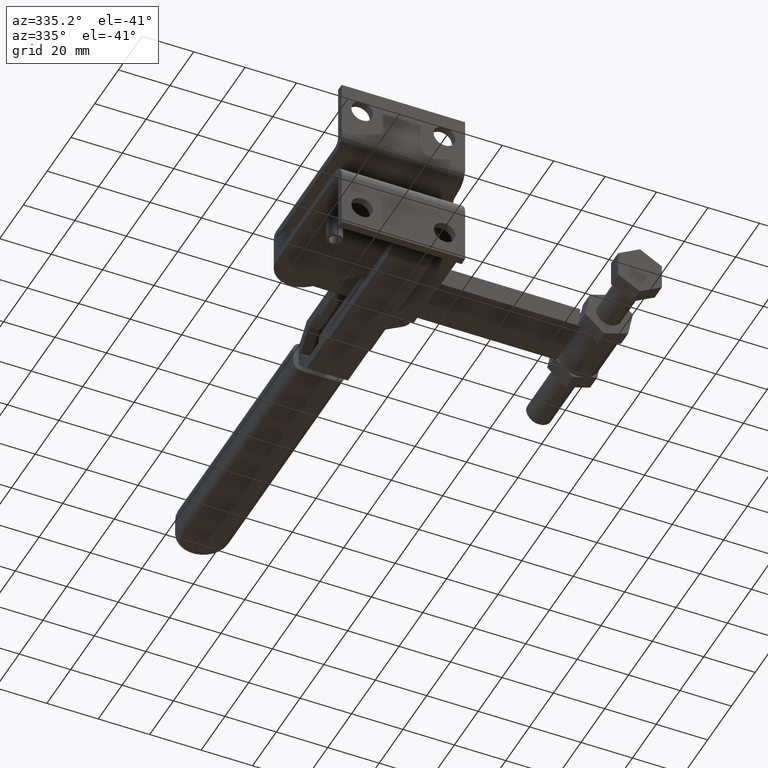
[diagram: clean part render]
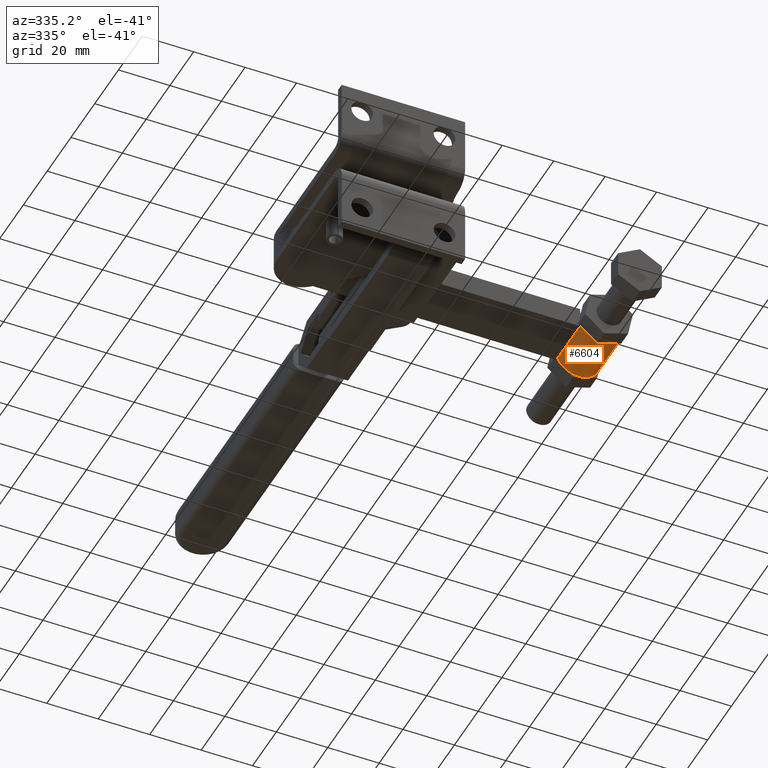
[diagram: same view with one face highlighted and labeled with its STEP entity id]
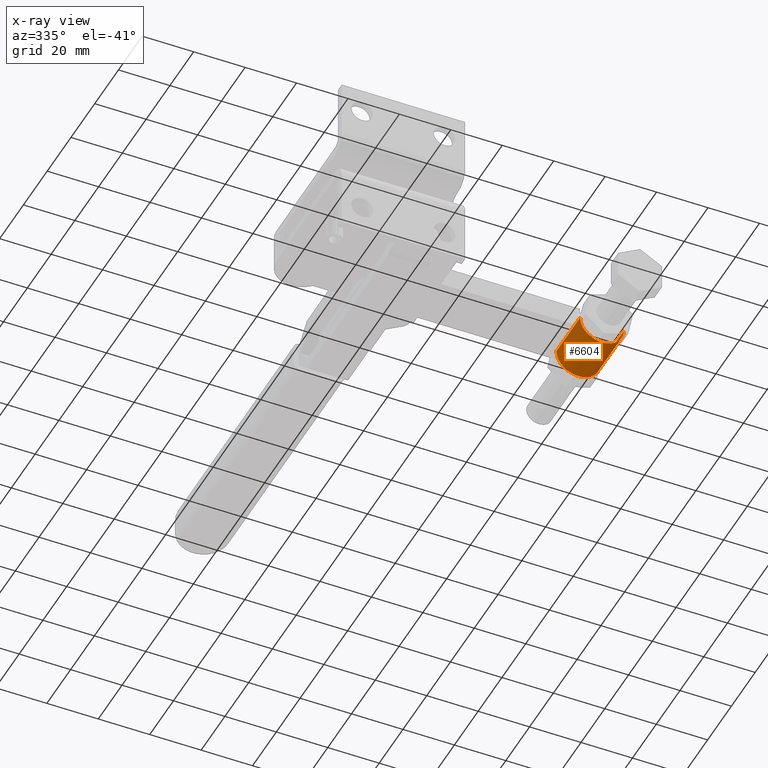
[diagram: x-ray of the same camera — body ghosted, the highlighted face saturated]
A machine part, auxiliary view. The second image highlights one B-rep face of the part: STEP entity #6604.
The next image is the same camera in x-ray: the body ghosted, the highlighted face saturated — about 0% of this face is hidden behind the body in this view.
In plain terms, the highlighted cylindrical surface (edge-blend (fillet) strip) has radius 8.5 mm, axis along (0, 1, 0).
Its self-contained STEP definition (entity closure, byte-faithful):
#6509=CARTESIAN_POINT('',(-890.357969662264960,110.092249585627530,-3.596141E-013));
#6510=DIRECTION('',(1.073216E-015,1.0,3.622758E-030));
#6511=DIRECTION('',(1.0,0.0,0.0));
#6512=AXIS2_PLACEMENT_3D('',#6509,#6510,#6511);
#6513=CYLINDRICAL_SURFACE('',#6512,8.500000000000000);
#6514=CARTESIAN_POINT('',(-881.857969662264960,110.092249585627510,-3.550672E-013));
#6515=VERTEX_POINT('',#6514);
#6516=CARTESIAN_POINT('',(-881.857969662264960,130.092249585627510,-3.550672E-013));
#6517=VERTEX_POINT('',#6516);
#6518=CARTESIAN_POINT('',(-881.857969662264960,110.092249585627510,-3.550672E-013));
#6519=DIRECTION('',(0.0,1.0,0.0));
#6520=VECTOR('',#6519,20.0);
#6521=LINE('',#6518,#6520);
#6522=EDGE_CURVE('',#6515,#6517,#6521,.T.);
#6523=ORIENTED_EDGE('',*,*,#6522,.F.);
#6524=CARTESIAN_POINT('',(-882.014227246437030,110.092249585627480,-1.622332425340619));
#6525=VERTEX_POINT('',#6524);
#6526=CARTESIAN_POINT('',(-890.357969662264960,110.092249585627530,-3.596141E-013));
#6527=DIRECTION('',(0.0,1.0,0.0));
#6528=DIRECTION('',(1.0,0.0,0.0));
#6529=AXIS2_PLACEMENT_3D('',#6526,#6527,#6528);
#6530=CIRCLE('',#6529,8.500000000000000);
#6531=EDGE_CURVE('',#6515,#6525,#6530,.T.);
#6532=ORIENTED_EDGE('',*,*,#6531,.T.);
#6533=CARTESIAN_POINT('',(-887.591079548078820,110.092249585627530,-8.037059107411452));
#6534=VERTEX_POINT('',#6533);
#6535=CARTESIAN_POINT('',(-890.357969662264960,110.092249585627530,-3.596141E-013));
#6536=DIRECTION('',(0.0,1.0,0.0));
#6537=DIRECTION('',(1.0,0.0,0.0));
#6538=AXIS2_PLACEMENT_3D('',#6535,#6536,#6537);
#6539=CIRCLE('',#6538,8.500000000000000);
#6540=EDGE_CURVE('',#6525,#6534,#6539,.T.);
#6541=ORIENTED_EDGE('',*,*,#6540,.T.);
#6542=CARTESIAN_POINT('',(-895.934821963907100,110.092249585627530,-6.414726682071126));
#6543=VERTEX_POINT('',#6542);
#6544=CARTESIAN_POINT('',(-890.357969662264960,110.092249585627530,-3.596141E-013));
#6545=DIRECTION('',(0.0,1.0,0.0));
#6546=DIRECTION('',(1.0,0.0,0.0));
#6547=AXIS2_PLACEMENT_3D('',#6544,#6545,#6546);
#6548=CIRCLE('',#6547,8.500000000000000);
#6549=EDGE_CURVE('',#6534,#6543,#6548,.T.);
#6550=ORIENTED_EDGE('',*,*,#6549,.T.);
#6551=CARTESIAN_POINT('',(-898.857969662265080,110.092249585627400,-3.631200E-013));
#6552=VERTEX_POINT('',#6551);
#6553=CARTESIAN_POINT('',(-890.357969662264960,110.092249585627530,-3.596141E-013));
#6554=DIRECTION('',(0.0,1.0,0.0));
#6555=DIRECTION('',(1.0,0.0,0.0));
#6556=AXIS2_PLACEMENT_3D('',#6553,#6554,#6555);
#6557=CIRCLE('',#6556,8.500000000000000);
#6558=EDGE_CURVE('',#6543,#6552,#6557,.T.);
#6559=ORIENTED_EDGE('',*,*,#6558,.T.);
#6560=CARTESIAN_POINT('',(-898.857969662265080,130.092249585627400,-3.631200E-013));
#6561=VERTEX_POINT('',#6560);
#6562=CARTESIAN_POINT('',(-898.857969662265080,110.092249585627400,-3.631200E-013));
#6563=DIRECTION('',(0.0,1.0,0.0));
#6564=VECTOR('',#6563,20.0);
#6565=LINE('',#6562,#6564);
#6566=EDGE_CURVE('',#6552,#6561,#6565,.T.);
#6567=ORIENTED_EDGE('',*,*,#6566,.T.);
#6568=CARTESIAN_POINT('',(-895.934821963907100,130.092249585627510,-6.414726682071085));
#6569=VERTEX_POINT('',#6568);
#6570=CARTESIAN_POINT('',(-890.357969662264960,130.092249585627510,-3.596141E-013));
#6571=DIRECTION('',(0.0,-1.0,0.0));
#6572=DIRECTION('',(1.0,0.0,0.0));
#6573=AXIS2_PLACEMENT_3D('',#6570,#6571,#6572);
#6574=CIRCLE('',#6573,8.500000000000000);
#6575=EDGE_CURVE('',#6561,#6569,#6574,.T.);
#6576=ORIENTED_EDGE('',*,*,#6575,.T.);
#6577=CARTESIAN_POINT('',(-887.591079548078820,130.092249585627510,-8.037059107411452));
#6578=VERTEX_POINT('',#6577);
#6579=CARTESIAN_POINT('',(-890.357969662264960,130.092249585627510,-3.596141E-013));
#6580=DIRECTION('',(0.0,-1.0,0.0));
#6581=DIRECTION('',(1.0,0.0,0.0));
#6582=AXIS2_PLACEMENT_3D('',#6579,#6580,#6581);
#6583=CIRCLE('',#6582,8.500000000000000);
#6584=EDGE_CURVE('',#6569,#6578,#6583,.T.);
#6585=ORIENTED_EDGE('',*,*,#6584,.T.);
#6586=CARTESIAN_POINT('',(-882.014227246436920,130.092249585627480,-1.622332425340677));
#6587=VERTEX_POINT('',#6586);
#6588=CARTESIAN_POINT('',(-890.357969662264960,130.092249585627510,-3.596141E-013));
#6589=DIRECTION('',(0.0,-1.0,0.0));
#6590=DIRECTION('',(1.0,0.0,0.0));
#6591=AXIS2_PLACEMENT_3D('',#6588,#6589,#6590);
#6592=CIRCLE('',#6591,8.500000000000000);
#6593=EDGE_CURVE('',#6578,#6587,#6592,.T.);
#6594=ORIENTED_EDGE('',*,*,#6593,.T.);
#6595=CARTESIAN_POINT('',(-890.357969662264960,130.092249585627510,-3.596141E-013));
#6596=DIRECTION('',(0.0,-1.0,0.0));
#6597=DIRECTION('',(1.0,0.0,0.0));
#6598=AXIS2_PLACEMENT_3D('',#6595,#6596,#6597);
#6599=CIRCLE('',#6598,8.500000000000000);
#6600=EDGE_CURVE('',#6587,#6517,#6599,.T.);
#6601=ORIENTED_EDGE('',*,*,#6600,.T.);
#6602=EDGE_LOOP('',(#6523,#6532,#6541,#6550,#6559,#6567,#6576,#6585,#6594,#6601));
#6603=FACE_OUTER_BOUND('',#6602,.T.);
#6604=ADVANCED_FACE('',(#6603),#6513,.T.);